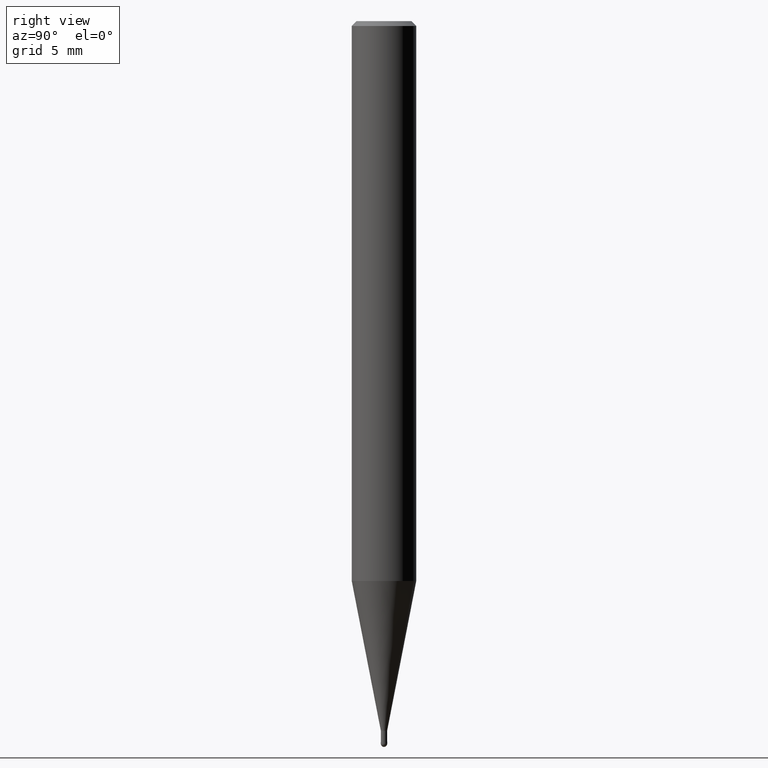
[diagram: clean part render]
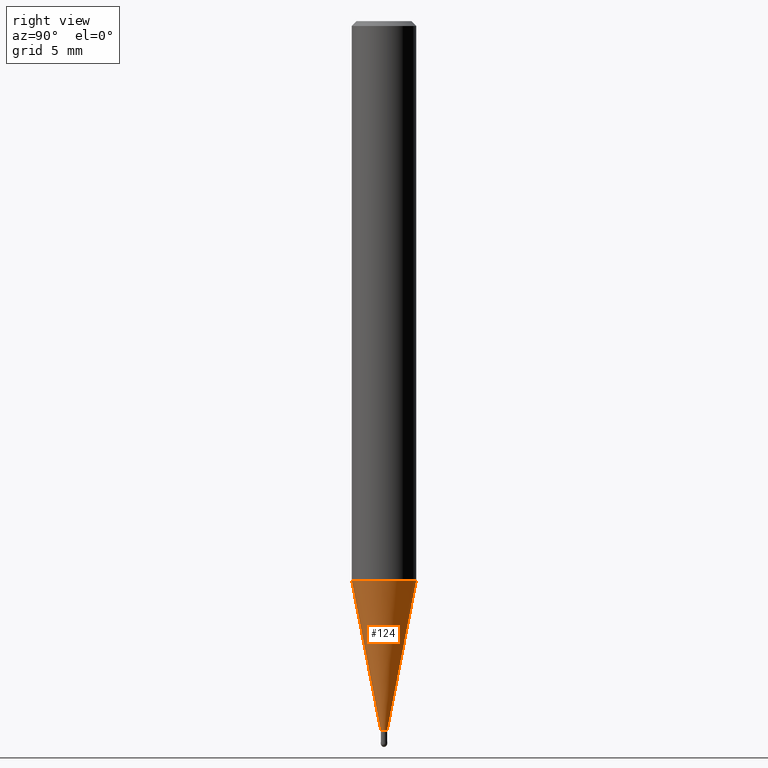
[diagram: same view with one face highlighted and labeled with its STEP entity id]
A machine part, right view. The second image highlights one B-rep face of the part: STEP entity #124.
In plain terms, the highlighted conical surface has half-angle 11 deg.
Its self-contained STEP definition (entity closure, byte-faithful):
#106=EDGE_CURVE('',#142,#134,#248,.T.);
#114=VERTEX_POINT('',#256);
#124=ADVANCED_FACE('',(#267),#268,.T.);
#126=EDGE_CURVE('',#114,#142,#270,.T.);
#134=VERTEX_POINT('',#279);
#142=VERTEX_POINT('',#288);
#166=EDGE_CURVE('',#134,#192,#315,.T.);
#192=VERTEX_POINT('',#347);
#206=EDGE_CURVE('',#114,#192,#362,.T.);
#248=CIRCLE('',#402,0.19495);
#256=CARTESIAN_POINT('',(0.0,1.99995,-34.714));
#267=FACE_OUTER_BOUND('',#423,.T.);
#268=CONICAL_SURFACE('',#424,1.09745,0.191984604054908);
#270=LINE('',#427,#428);
#279=CARTESIAN_POINT('',(2.38737008677672E-017,-0.19495,-44.0));
#288=CARTESIAN_POINT('',(0.0,0.19495,-44.0));
#315=LINE('',#485,#486);
#347=CARTESIAN_POINT('',(2.44915147732706E-016,-1.99995,-34.714));
#362=CIRCLE('',#546,1.99995);
#402=AXIS2_PLACEMENT_3D('',#573,#574,#575);
#423=EDGE_LOOP('',(#591,#592,#593,#594));
#424=AXIS2_PLACEMENT_3D('',#595,#596,#597);
#427=CARTESIAN_POINT('',(-1.34394424300237E-016,1.09745,-39.357));
#428=VECTOR('',#598,1.0);
#485=CARTESIAN_POINT('',(1.34394424300237E-016,-1.09745,-39.357));
#486=VECTOR('',#653,1.0);
#546=AXIS2_PLACEMENT_3D('',#726,#727,#728);
#573=CARTESIAN_POINT('',(0.0,0.0,-44.0));
#574=DIRECTION('',(0.0,0.0,-1.0));
#575=DIRECTION('',(0.0,1.0,0.0));
#591=ORIENTED_EDGE('',*,*,#126,.F.);
#592=ORIENTED_EDGE('',*,*,#206,.T.);
#593=ORIENTED_EDGE('',*,*,#166,.F.);
#594=ORIENTED_EDGE('',*,*,#106,.F.);
#595=CARTESIAN_POINT('',(0.0,0.0,-39.357));
#596=DIRECTION('',(-0.0,-0.0,1.0));
#597=DIRECTION('',(0.0,1.0,0.0));
#598=DIRECTION('',(2.33663968307108E-017,-0.190807411359389,-0.981627491348082));
#653=DIRECTION('',(2.33663968307108E-017,-0.190807411359389,0.981627491348082));
#726=CARTESIAN_POINT('',(0.0,0.0,-34.714));
#727=DIRECTION('',(0.0,0.0,-1.0));
#728=DIRECTION('',(0.0,1.0,0.0));